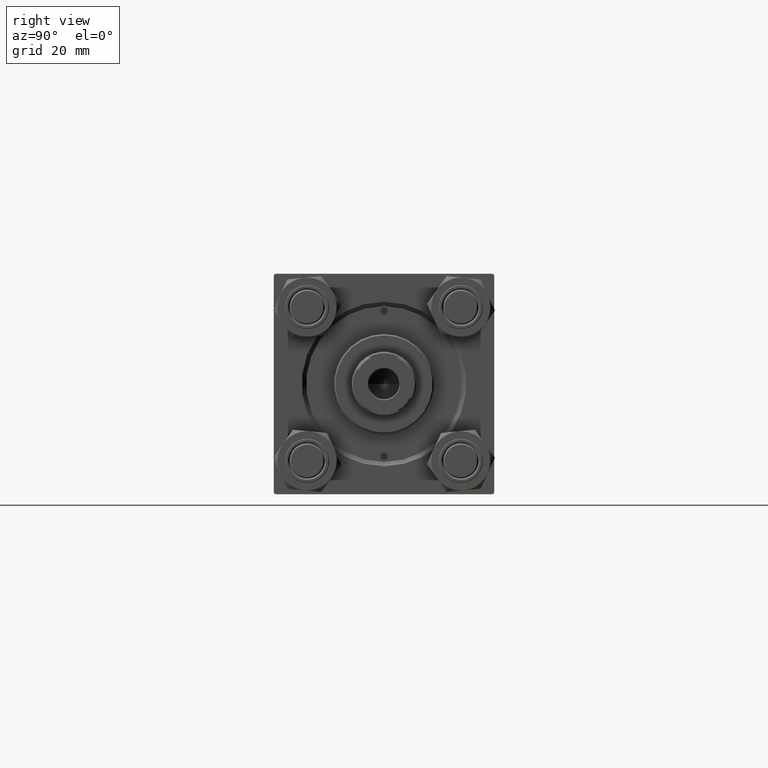
[diagram: clean part render]
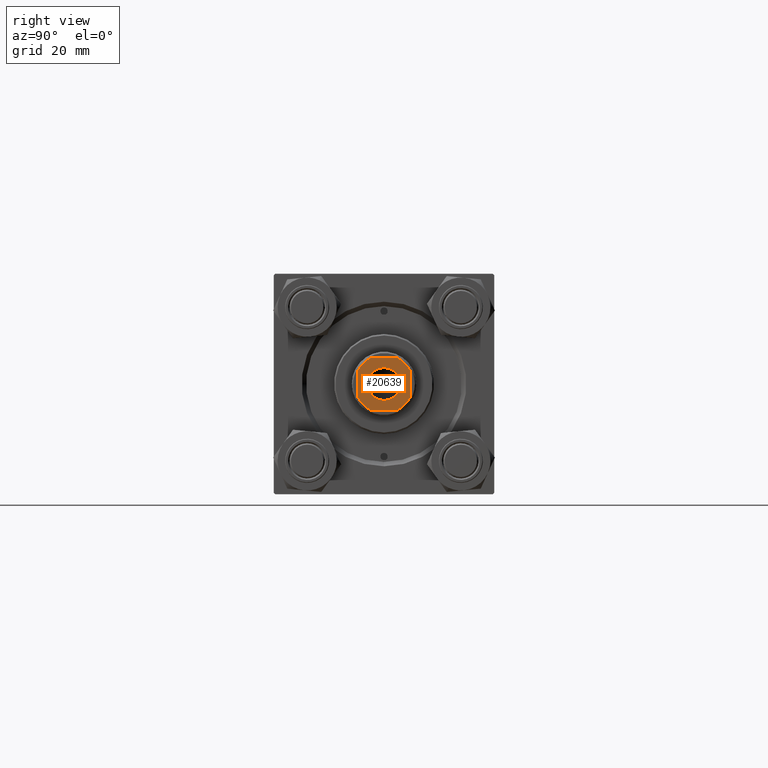
[diagram: same view with one face highlighted and labeled with its STEP entity id]
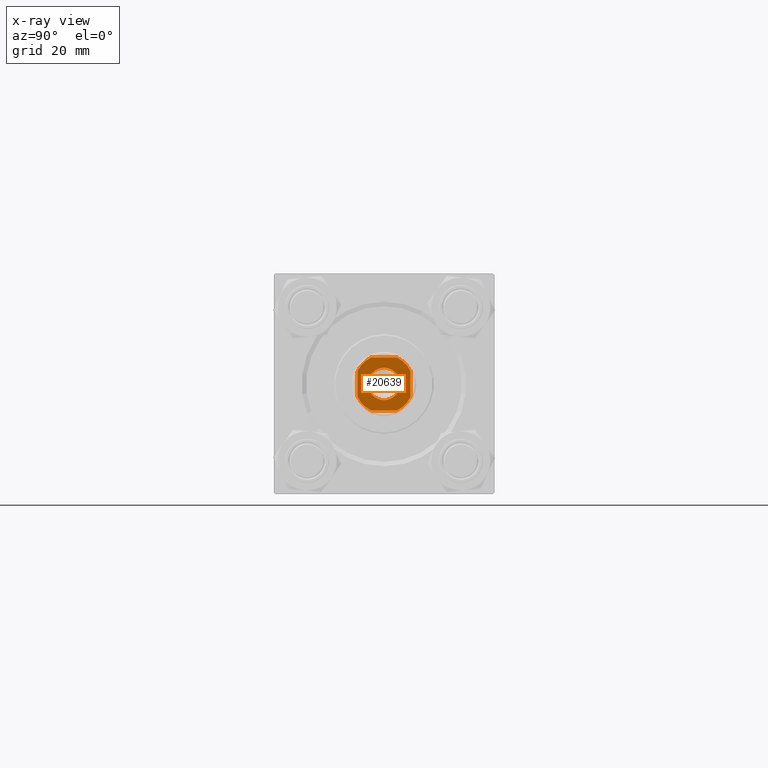
[diagram: x-ray of the same camera — body ghosted, the highlighted face saturated]
A machine part, right view. The second image highlights one B-rep face of the part: STEP entity #20639.
The next image is the same camera in x-ray: the body ghosted, the highlighted face saturated — about 0% of this face is hidden behind the body in this view.
In plain terms, the highlighted planar face has unit normal (1, 0, -0).
Its self-contained STEP definition (entity closure, byte-faithful):
#354 = VERTEX_POINT ( 'NONE', #27689 ) ;
#657 = VERTEX_POINT ( 'NONE', #31655 ) ;
#1518 = ORIENTED_EDGE ( 'NONE', *, *, #43787, .T. ) ;
#1746 = LINE ( 'NONE', #6023, #13006 ) ;
#1936 = AXIS2_PLACEMENT_3D ( 'NONE', #12160, #15954, #7876 ) ;
#2146 = EDGE_LOOP ( 'NONE', ( #8183, #23875 ) ) ;
#2641 = CIRCLE ( 'NONE', #9076, 10.00000000000002487 ) ;
#3154 = CARTESIAN_POINT ( 'NONE',  ( 5.549999999999998934, 0.000000000000000000, 142.0000000000000284 ) ) ;
#3534 = EDGE_CURVE ( 'NONE', #22615, #33272, #8755, .T. ) ;
#4564 = CARTESIAN_POINT ( 'NONE',  ( -9.000000000000003553, 8.999999999999998224, 142.0000000000000284 ) ) ;
#5423 = DIRECTION ( 'NONE',  ( -1.927470528863119049E-16, 1.000000000000000000, -0.000000000000000000 ) ) ;
#6023 = CARTESIAN_POINT ( 'NONE',  ( -9.000000000000001776, -9.000000000000001776, 142.0000000000000284 ) ) ;
#6938 = CARTESIAN_POINT ( 'NONE',  ( 0.000000000000000000, 0.000000000000000000, 142.0000000000000284 ) ) ;
#7290 = CARTESIAN_POINT ( 'NONE',  ( -9.000000000000003553, 8.999999999999998224, 142.0000000000000284 ) ) ;
#7876 = DIRECTION ( 'NONE',  ( 1.000000000000000000, 0.000000000000000000, 0.000000000000000000 ) ) ;
#8183 = ORIENTED_EDGE ( 'NONE', *, *, #28538, .T. ) ;
#8755 = CIRCLE ( 'NONE', #40932, 10.00000000000007283 ) ;
#8845 = LINE ( 'NONE', #4564, #23841 ) ;
#9076 = AXIS2_PLACEMENT_3D ( 'NONE', #36590, #33569, #14156 ) ;
#9467 = LINE ( 'NONE', #48575, #17917 ) ;
#9762 = DIRECTION ( 'NONE',  ( 1.000000000000000000, 0.000000000000000000, 0.000000000000000000 ) ) ;
#10837 = LINE ( 'NONE', #7290, #48817 ) ;
#10914 = ORIENTED_EDGE ( 'NONE', *, *, #3534, .T. ) ;
#11215 = FACE_OUTER_BOUND ( 'NONE', #32291, .T. ) ;
#11641 = CIRCLE ( 'NONE', #35785, 5.549999999999998934 ) ;
#11727 = VERTEX_POINT ( 'NONE', #27617 ) ;
#12160 = CARTESIAN_POINT ( 'NONE',  ( 0.000000000000000000, 0.000000000000000000, 142.0000000000000284 ) ) ;
#12532 = VERTEX_POINT ( 'NONE', #24086 ) ;
#13006 = VECTOR ( 'NONE', #32020, 1000.000000000000000 ) ;
#14156 = DIRECTION ( 'NONE',  ( 1.000000000000000000, 0.000000000000000000, 0.000000000000000000 ) ) ;
#14944 = ORIENTED_EDGE ( 'NONE', *, *, #32744, .T. ) ;
#15864 = EDGE_CURVE ( 'NONE', #657, #48034, #29017, .T. ) ;
#15954 = DIRECTION ( 'NONE',  ( 0.000000000000000000, -0.000000000000000000, -1.000000000000000000 ) ) ;
#16178 = DIRECTION ( 'NONE',  ( 9.637352644315595243E-17, -1.000000000000000000, 0.000000000000000000 ) ) ;
#17917 = VECTOR ( 'NONE', #5423, 1000.000000000000000 ) ;
#18535 = CARTESIAN_POINT ( 'NONE',  ( 0.000000000000000000, 0.000000000000000000, 142.0000000000000284 ) ) ;
#18789 = FACE_BOUND ( 'NONE', #2146, .T. ) ;
#19955 = CARTESIAN_POINT ( 'NONE',  ( 0.000000000000000000, 0.000000000000000000, 142.0000000000000284 ) ) ;
#20298 = ORIENTED_EDGE ( 'NONE', *, *, #33511, .T. ) ;
#20460 = EDGE_CURVE ( 'NONE', #33272, #354, #9467, .T. ) ;
#20639 = ADVANCED_FACE ( 'NONE', ( #18789, #11215 ), #49569, .T. ) ;
#21947 = EDGE_CURVE ( 'NONE', #12532, #22615, #1746, .T. ) ;
#22330 = DIRECTION ( 'NONE',  ( 1.000000000000000000, 0.000000000000000000, 0.000000000000000000 ) ) ;
#22615 = VERTEX_POINT ( 'NONE', #46201 ) ;
#22991 = DIRECTION ( 'NONE',  ( 1.000000000000000000, 0.000000000000000000, 0.000000000000000000 ) ) ;
#23564 = AXIS2_PLACEMENT_3D ( 'NONE', #18535, #33917, #26595 ) ;
#23841 = VECTOR ( 'NONE', #16178, 1000.000000000000000 ) ;
#23875 = ORIENTED_EDGE ( 'NONE', *, *, #29266, .T. ) ;
#24063 = ORIENTED_EDGE ( 'NONE', *, *, #20460, .T. ) ;
#24086 = CARTESIAN_POINT ( 'NONE',  ( -4.358898943540612692, -9.000000000000001776, 142.0000000000000284 ) ) ;
#24504 = CARTESIAN_POINT ( 'NONE',  ( -9.000000000000003553, -4.358898943540610915, 142.0000000000000284 ) ) ;
#25418 = VERTEX_POINT ( 'NONE', #24504 ) ;
#25484 = EDGE_CURVE ( 'NONE', #354, #11727, #2641, .T. ) ;
#26543 = ORIENTED_EDGE ( 'NONE', *, *, #15864, .T. ) ;
#26595 = DIRECTION ( 'NONE',  ( 1.000000000000000000, 0.000000000000000000, 0.000000000000000000 ) ) ;
#26739 = CIRCLE ( 'NONE', #49323, 9.999999999999973355 ) ;
#27617 = CARTESIAN_POINT ( 'NONE',  ( 4.358898943540733484, 8.999999999999998224, 142.0000000000000284 ) ) ;
#27689 = CARTESIAN_POINT ( 'NONE',  ( 8.999999999999998224, 4.358898943540736148, 142.0000000000000284 ) ) ;
#27929 = VERTEX_POINT ( 'NONE', #29693 ) ;
#28538 = EDGE_CURVE ( 'NONE', #35108, #27929, #46255, .T. ) ;
#29017 = CIRCLE ( 'NONE', #45186, 10.00000000000007105 ) ;
#29266 = EDGE_CURVE ( 'NONE', #27929, #35108, #11641, .T. ) ;
#29693 = CARTESIAN_POINT ( 'NONE',  ( -5.549999999999998934, 6.796789735267809794E-16, 142.0000000000000284 ) ) ;
#30460 = CARTESIAN_POINT ( 'NONE',  ( 0.000000000000000000, 0.000000000000000000, 142.0000000000000284 ) ) ;
#30494 = DIRECTION ( 'NONE',  ( -1.000000000000000000, -0.000000000000000000, -0.000000000000000000 ) ) ;
#30979 = ORIENTED_EDGE ( 'NONE', *, *, #25484, .T. ) ;
#31655 = CARTESIAN_POINT ( 'NONE',  ( -4.358898943540841842, 8.999999999999998224, 142.0000000000000284 ) ) ;
#31789 = DIRECTION ( 'NONE',  ( -0.000000000000000000, 0.000000000000000000, 1.000000000000000000 ) ) ;
#32020 = DIRECTION ( 'NONE',  ( 1.000000000000000000, 0.000000000000000000, 0.000000000000000000 ) ) ;
#32291 = EDGE_LOOP ( 'NONE', ( #24063, #30979, #14944, #26543, #20298, #1518, #41167, #10914 ) ) ;
#32744 = EDGE_CURVE ( 'NONE', #11727, #657, #10837, .T. ) ;
#33272 = VERTEX_POINT ( 'NONE', #40410 ) ;
#33511 = EDGE_CURVE ( 'NONE', #48034, #25418, #8845, .T. ) ;
#33569 = DIRECTION ( 'NONE',  ( -0.000000000000000000, 0.000000000000000000, 1.000000000000000000 ) ) ;
#33917 = DIRECTION ( 'NONE',  ( -0.000000000000000000, 0.000000000000000000, 1.000000000000000000 ) ) ;
#35108 = VERTEX_POINT ( 'NONE', #3154 ) ;
#35785 = AXIS2_PLACEMENT_3D ( 'NONE', #6938, #38468, #22330 ) ;
#36590 = CARTESIAN_POINT ( 'NONE',  ( 0.000000000000000000, 0.000000000000000000, 142.0000000000000284 ) ) ;
#38468 = DIRECTION ( 'NONE',  ( 0.000000000000000000, -0.000000000000000000, -1.000000000000000000 ) ) ;
#39026 = DIRECTION ( 'NONE',  ( -0.000000000000000000, 0.000000000000000000, 1.000000000000000000 ) ) ;
#40230 = CARTESIAN_POINT ( 'NONE',  ( -9.000000000000003553, 4.358898943540833848, 142.0000000000000284 ) ) ;
#40410 = CARTESIAN_POINT ( 'NONE',  ( 8.999999999999998224, -4.358898943540842730, 142.0000000000000284 ) ) ;
#40932 = AXIS2_PLACEMENT_3D ( 'NONE', #30460, #39026, #45873 ) ;
#41167 = ORIENTED_EDGE ( 'NONE', *, *, #21947, .T. ) ;
#41475 = CARTESIAN_POINT ( 'NONE',  ( 0.000000000000000000, 0.000000000000000000, 142.0000000000000284 ) ) ;
#43787 = EDGE_CURVE ( 'NONE', #25418, #12532, #26739, .T. ) ;
#45186 = AXIS2_PLACEMENT_3D ( 'NONE', #41475, #45280, #9762 ) ;
#45280 = DIRECTION ( 'NONE',  ( -0.000000000000000000, 0.000000000000000000, 1.000000000000000000 ) ) ;
#45873 = DIRECTION ( 'NONE',  ( 1.000000000000000000, 0.000000000000000000, 0.000000000000000000 ) ) ;
#46201 = CARTESIAN_POINT ( 'NONE',  ( 4.358898943540838289, -9.000000000000001776, 142.0000000000000284 ) ) ;
#46255 = CIRCLE ( 'NONE', #1936, 5.549999999999998934 ) ;
#48034 = VERTEX_POINT ( 'NONE', #40230 ) ;
#48575 = CARTESIAN_POINT ( 'NONE',  ( 8.999999999999996447, 8.999999999999998224, 142.0000000000000284 ) ) ;
#48817 = VECTOR ( 'NONE', #30494, 1000.000000000000000 ) ;
#49323 = AXIS2_PLACEMENT_3D ( 'NONE', #19955, #31789, #22991 ) ;
#49569 = PLANE ( 'NONE',  #23564 ) ;